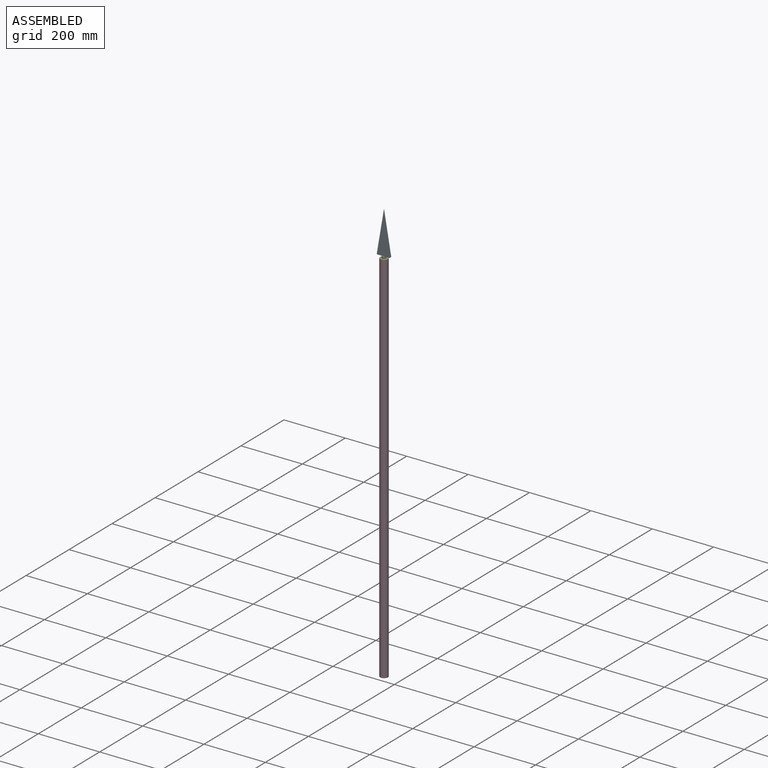
[diagram: assembled view]
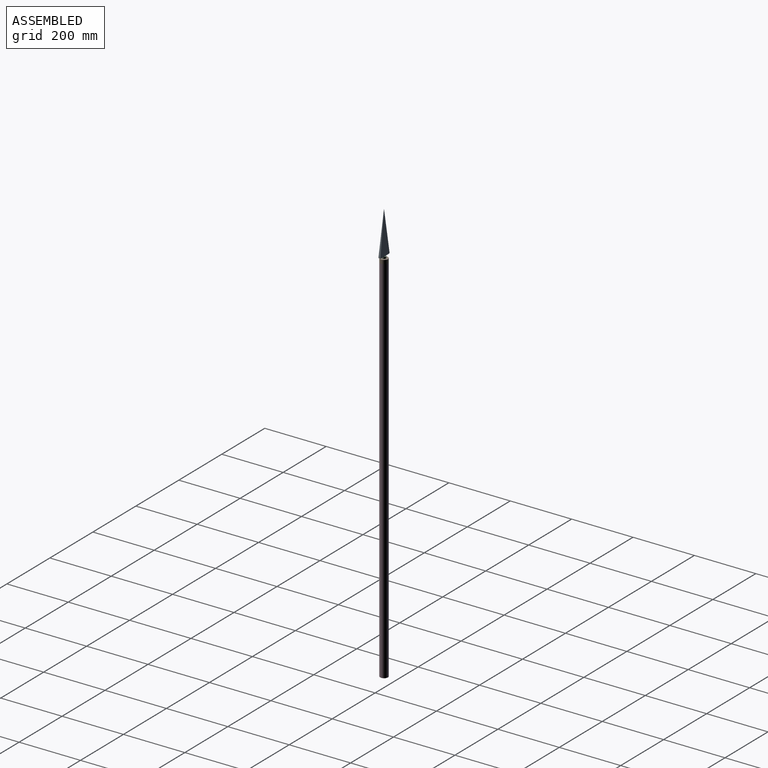
[diagram: assembled view, second angle]
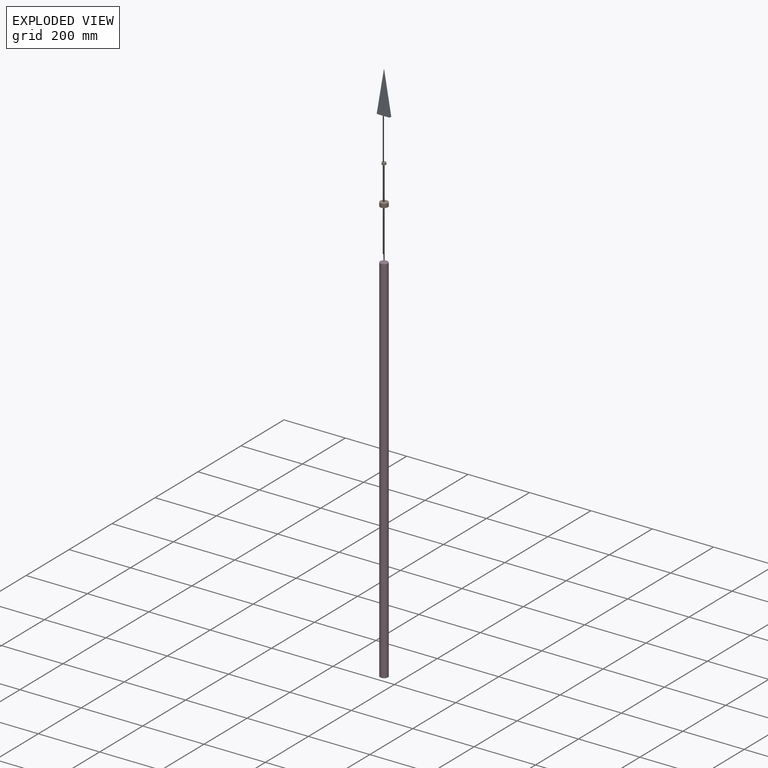
[diagram: exploded view]
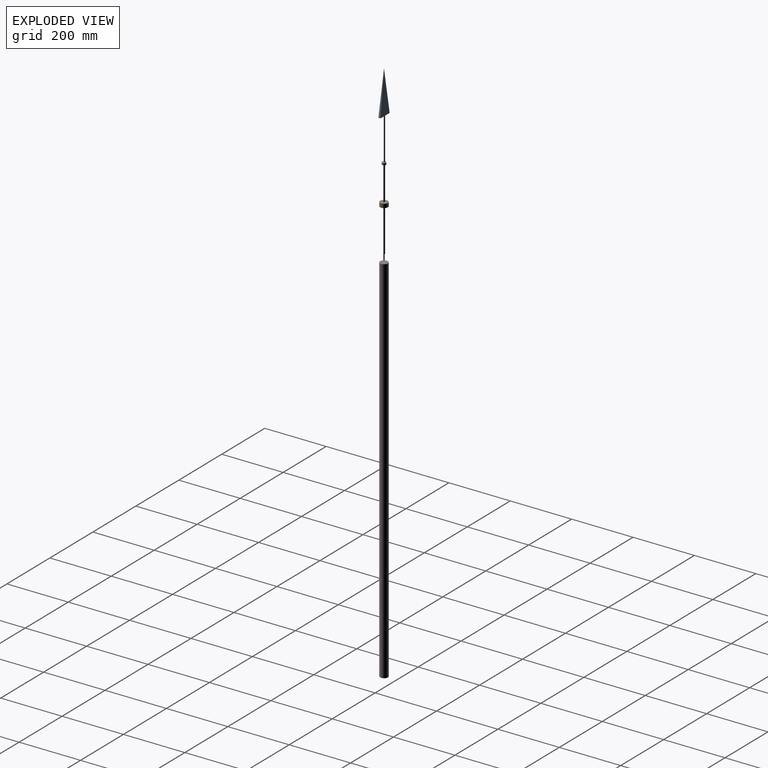
[diagram: exploded view, second angle]
ASSEMBLY  parts=4 mates=3
PART A: 9 faces, bbox 42.7x6.4x138.7 mm
  f0: plane 136.63x21.33mm, normal (-0.99,0,0.15), area 439.1mm2, adj f5,f7,f8
  f1: plane 39.1x6.35mm, normal (0,0,-1), area 248.3mm2, adj f3,f4,f5,f6
  f2: plane 136.63x21.28mm, normal (0.99,0,0.15), area 439mm2, adj f6,f7,f8
  f3: plane 42.65x2.05mm, normal (0,-1,0), area 86.1mm2, adj f1,f5,f6,f8
  f4: plane 42.65x2.05mm, normal (0,1,0), area 86.1mm2, adj f1,f5,f6,f7
  f5: cylinder r=1.78mm len=6.35mm, axis (0,-1,0), area 19.5mm2, adj f0,f1,f3,f4,f7,f8
  f6: cylinder r=1.78mm len=6.35mm, axis (0,-1,0), area 19.5mm2, adj f1,f2,f3,f4
  f7: plane 136.63x42.61mm, normal (0,1,0.02), area 2911.6mm2, adj f0,f2,f4,f5
  f8: plane 136.63x42.61mm, normal (0,-1,0.02), area 2911.6mm2, adj f0,f2,f3,f5
PART B: 3 faces, bbox 25.4x25.4x12.7 mm
  f0: plane 25.4x25.4mm, normal (0,0,1), area 506.7mm2, adj f1
  f1: cylinder r=12.7mm len=25.4mm, axis (0,0,1), area 1013.4mm2, adj f0,f2
  f2: plane 25.4x25.4mm, normal (0,0,-1), area 506.7mm2, adj f1
PART C: 3 faces, bbox 12.7x12.7x6.4 mm
  f0: plane 12.7x12.7mm, normal (0,0,-1), area 126.7mm2, adj f1
  f1: cylinder r=6.35mm len=12.7mm, axis (0,0,1), area 253.6mm2, adj f0,f2
  f2: plane 12.7x12.7mm, normal (0,0,1), area 126.7mm2, adj f1
PART D: 3 faces, bbox 25.4x25.4x1219.2 mm
  f0: plane 25.4x25.4mm, normal (0,0,-1), area 506.7mm2, adj f1
  f1: cylinder r=12.7mm len=1219.2mm, axis (0,0,-1), area 97287.8mm2, adj f0,f2
  f2: plane 25.4x25.4mm, normal (0,0,1), area 506.7mm2, adj f1
PLACE A t=(65.28,69.44,-494.98)mm
PLACE B t=(65.25,69.44,-494.98)mm
PLACE C t=(65.25,69.44,-494.98)mm
PLACE D t=(57.77,69.44,-1715.99)mm
MATE fastened C.f1 <-> A.f1  axis (0,0,1) through (57.77,69.44,-551.06)mm
MATE fastened B.f1 <-> C.f1  axis (0,0,1) through (57.77,69.44,-557.41)mm
MATE fastened B.f1 <-> D.f1  axis (0,0,-1) through (57.77,69.44,-570.11)mm
